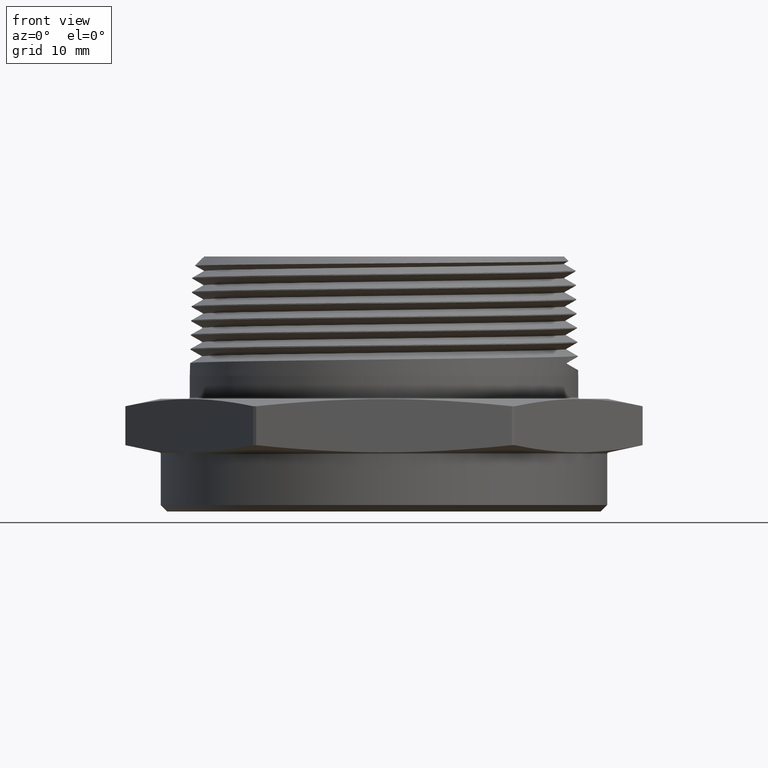
[diagram: clean part render]
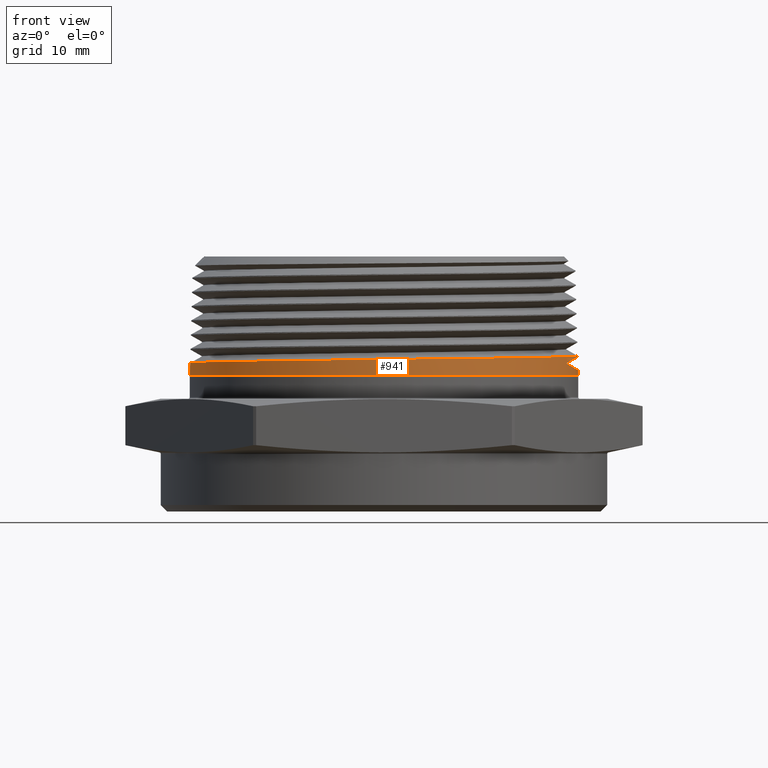
[diagram: same view with one face highlighted and labeled with its STEP entity id]
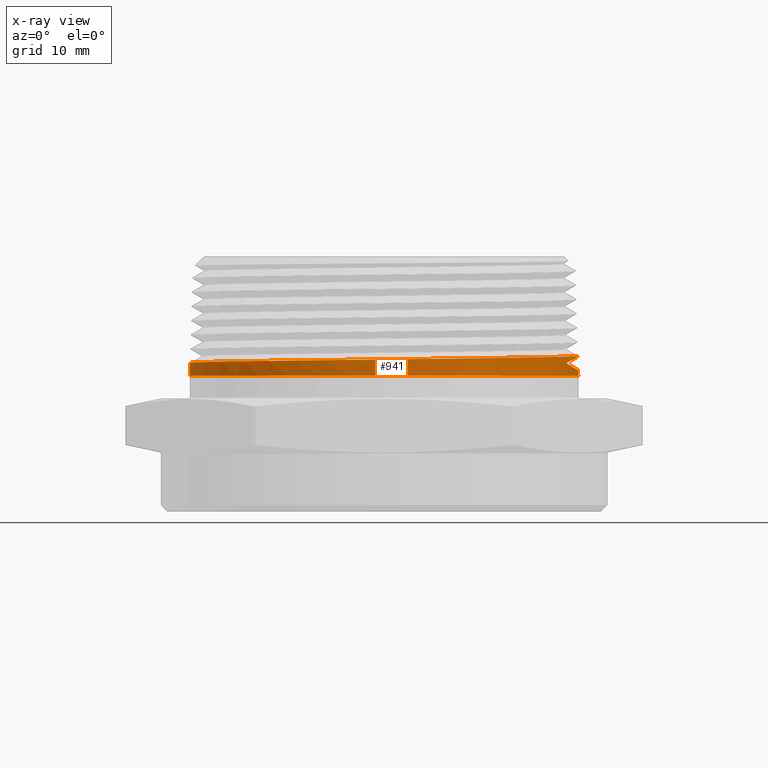
[diagram: x-ray of the same camera — body ghosted, the highlighted face saturated]
A machine part, front view. The second image highlights one B-rep face of the part: STEP entity #941.
The next image is the same camera in x-ray: the body ghosted, the highlighted face saturated — about 0% of this face is hidden behind the body in this view.
In plain terms, the highlighted conical surface has half-angle 1.47 deg.
Its self-contained STEP definition (entity closure, byte-faithful):
#231 = VERTEX_POINT ( 'NONE', #1107 ) ;
#233 = VERTEX_POINT ( 'NONE', #1109 ) ;
#259 = VERTEX_POINT ( 'NONE', #718 ) ;
#260 = VERTEX_POINT ( 'NONE', #719 ) ;
#261 = VERTEX_POINT ( 'NONE', #720 ) ;
#263 = VERTEX_POINT ( 'NONE', #722 ) ;
#269 = VERTEX_POINT ( 'NONE', #728 ) ;
#390 = FACE_OUTER_BOUND ( 'NONE', #7900, .T. ) ;
#395 = CONICAL_SURFACE ( 'NONE', #1925, 1.190625841662516200, 0.02565634000430881300 ) ;
#454 = LINE ( 'NONE', #2133, #460 ) ;
#460 = VECTOR ( 'NONE', #4053, 39.37007874015748100 ) ;
#461 = LINE ( 'NONE', #2153, #466 ) ;
#463 = LINE ( 'NONE', #2151, #464 ) ;
#464 = VECTOR ( 'NONE', #2152, 39.37007874015748100 ) ;
#466 = VECTOR ( 'NONE', #2155, 39.37007874015748100 ) ;
#489 = CIRCLE ( 'NONE', #1957, 1.187500000000000000 ) ;
#718 = CARTESIAN_POINT ( 'NONE',  ( 1.187500000000000000, 1.454268073987482100E-016, 0.4712952533779566900 ) ) ;
#719 = CARTESIAN_POINT ( 'NONE',  ( 1.186645000533695000, 2.325153602604478400E-015, 0.5046130164504506500 ) ) ;
#720 = CARTESIAN_POINT ( 'NONE',  ( -1.185529218039113300, 2.274924391407512300E-016, 0.5480930164504473900 ) ) ;
#722 = CARTESIAN_POINT ( 'NONE',  ( -1.187500000000000000, 0.0000000000000000000, 0.4712952533779566900 ) ) ;
#728 = CARTESIAN_POINT ( 'NONE',  ( 1.184413435544530200, 2.040348970267996500E-015, 0.5915730164504498000 ) ) ;
#941 = ADVANCED_FACE ( 'NONE', ( #390 ), #395, .T. ) ;
#1000 = EDGE_CURVE ( 'NONE', #269, #7905, #454, .T. ) ;
#1004 = EDGE_CURVE ( 'NONE', #260, #259, #463, .T. ) ;
#1005 = EDGE_CURVE ( 'NONE', #261, #263, #461, .T. ) ;
#1042 = EDGE_CURVE ( 'NONE', #269, #261, #6562, .T. ) ;
#1043 = EDGE_CURVE ( 'NONE', #263, #259, #489, .T. ) ;
#1044 = EDGE_CURVE ( 'NONE', #233, #260, #6563, .T. ) ;
#1045 = EDGE_CURVE ( 'NONE', #231, #233, #6564, .T. ) ;
#1046 = EDGE_CURVE ( 'NONE', #7905, #231, #6565, .T. ) ;
#1107 = CARTESIAN_POINT ( 'NONE',  ( 1.117552519913329600, -0.3956899596870014400, 0.5478522102968981200 ) ) ;
#1109 = CARTESIAN_POINT ( 'NONE',  ( 1.117552519913329600, -0.3959473495157783100, 0.5445035787355982900 ) ) ;
#1241 = CARTESIAN_POINT ( 'NONE',  ( 1.184436904304788400, -0.07826431744836553900, 0.5906584818516432700 ) ) ;
#1242 = CARTESIAN_POINT ( 'NONE',  ( 1.184413435544530200, 2.040348970267996500E-015, 0.5915730164504498000 ) ) ;
#1309 = CARTESIAN_POINT ( 'NONE',  ( 1.117552519913329600, -0.3957757808937815700, 0.5467360023395784200 ) ) ;
#1310 = CARTESIAN_POINT ( 'NONE',  ( 1.117552519913329600, -0.3956899596870014400, 0.5478522102968981200 ) ) ;
#1311 = CARTESIAN_POINT ( 'NONE',  ( 1.176771664654019800, -0.1554336755222475400, 0.5897567843123879800 ) ) ;
#1312 = CARTESIAN_POINT ( 'NONE',  ( 1.154092631342867700, -0.2694434336449708100, 0.5883984675665008300 ) ) ;
#1313 = CARTESIAN_POINT ( 'NONE',  ( 1.144655896674125600, -0.3071624617352892200, 0.5879420261245268400 ) ) ;
#1314 = CARTESIAN_POINT ( 'NONE',  ( 1.121920402800851100, -0.3820158051357524500, 0.5870280252899651200 ) ) ;
#1315 = CARTESIAN_POINT ( 'NONE',  ( 1.108765608685983400, -0.4186584654597881900, 0.5865764198009531000 ) ) ;
#1316 = CARTESIAN_POINT ( 'NONE',  ( 1.064269766022531300, -0.5258705701184571700, 0.5852199606311758700 ) ) ;
#1317 = CARTESIAN_POINT ( 'NONE',  ( 1.027884076363619200, -0.5939477157700442400, 0.5843226632063145400 ) ) ;
#1318 = CARTESIAN_POINT ( 'NONE',  ( 0.9630843520744799500, -0.6908966854790711300, 0.5829601845324110500 ) ) ;
#1319 = CARTESIAN_POINT ( 'NONE',  ( 0.9396581548580144000, -0.7224534166193743400, 0.5824988859501232200 ) ) ;
#1320 = CARTESIAN_POINT ( 'NONE',  ( 0.8903191891692672200, -0.7824853483935352300, 0.5815911444461114900 ) ) ;
#1321 = CARTESIAN_POINT ( 'NONE',  ( 0.8643194336825231700, -0.8111168930147065700, 0.5811425668971687000 ) ) ;
#1322 = CARTESIAN_POINT ( 'NONE',  ( 0.8097128745357342600, -0.8656665595801400500, 0.5802407380244604100 ) ) ;
#1323 = CARTESIAN_POINT ( 'NONE',  ( 0.7811059959672814700, -0.8915846067973858300, 0.5797876777411568000 ) ) ;
#1324 = CARTESIAN_POINT ( 'NONE',  ( 0.7212622398211184800, -0.9406835027632217700, 0.5788834255647181700 ) ) ;
#1325 = CARTESIAN_POINT ( 'NONE',  ( 0.6899457887154677400, -0.9639174311499743000, 0.5784311758143403400 ) ) ;
#1326 = CARTESIAN_POINT ( 'NONE',  ( 0.5924134191483538800, -1.029016588526543700, 0.5770611715282993900 ) ) ;
#1327 = CARTESIAN_POINT ( 'NONE',  ( 0.5241697741679698400, -1.065354874533903700, 0.5761625851159181100 ) ) ;
#1328 = CARTESIAN_POINT ( 'NONE',  ( 0.4171468460384280500, -1.109654732528556000, 0.5748094592047575700 ) ) ;
#1329 = CARTESIAN_POINT ( 'NONE',  ( 0.3806906412739711800, -1.122707631859508600, 0.5743550255990733700 ) ) ;
#1330 = CARTESIAN_POINT ( 'NONE',  ( 0.3248037116765822300, -1.139651266307445600, 0.5736729105628245500 ) ) ;
#1331 = CARTESIAN_POINT ( 'NONE',  ( 0.3059211661436035400, -1.144871539213508700, 0.5734446677233801000 ) ) ;
#1332 = CARTESIAN_POINT ( 'NONE',  ( 0.2680380051176398700, -1.154340453980393400, 0.5729899176916174500 ) ) ;
#1333 = CARTESIAN_POINT ( 'NONE',  ( 0.2490522020910070900, -1.158588864762038200, 0.5727635688977409400 ) ) ;
#1334 = CARTESIAN_POINT ( 'NONE',  ( 0.1539063822530170300, -1.177447200961365000, 0.5716304335949767800 ) ) ;
#1335 = CARTESIAN_POINT ( 'NONE',  ( 0.07710192475132506000, -1.184973473918633900, 0.5707335911635746900 ) ) ;
#1336 = CARTESIAN_POINT ( 'NONE',  ( -0.01975949353368015500, -1.184970856004429400, 0.5696022195038197300 ) ) ;
#1337 = CARTESIAN_POINT ( 'NONE',  ( -0.03917494250642266500, -1.184495602943350700, 0.5693746123928565800 ) ) ;
#1338 = CARTESIAN_POINT ( 'NONE',  ( -0.07809367992320617700, -1.182579235049751700, 0.5689181625976194000 ) ) ;
#1339 = CARTESIAN_POINT ( 'NONE',  ( -0.09764811409106267900, -1.181131644186110600, 0.5686887227160925000 ) ) ;
#1340 = CARTESIAN_POINT ( 'NONE',  ( -0.1558810119749945400, -1.175368545169660100, 0.5680053221006717800 ) ) ;
#1341 = CARTESIAN_POINT ( 'NONE',  ( -0.1942286487246051000, -1.169642377170521300, 0.5675557468259282400 ) ) ;
#1342 = CARTESIAN_POINT ( 'NONE',  ( -0.3078895741031024100, -1.146975127150197300, 0.5662019879866128100 ) ) ;
#1343 = CARTESIAN_POINT ( 'NONE',  ( -0.3818341387260548700, -1.124597416965668700, 0.5653042582663462300 ) ) ;
#1344 = CARTESIAN_POINT ( 'NONE',  ( -0.4719121120287960200, -1.087281457054009500, 0.5641655427697013200 ) ) ;
#1345 = CARTESIAN_POINT ( 'NONE',  ( -0.4898380735925023700, -1.079330429471030900, 0.5639357448336045400 ) ) ;
#1346 = CARTESIAN_POINT ( 'NONE',  ( -0.5250657263213064400, -1.062651996271043700, 0.5634792285993411900 ) ) ;
#1347 = CARTESIAN_POINT ( 'NONE',  ( -0.5424120055701626700, -1.053907941106708300, 0.5632519548737205900 ) ) ;
#1348 = CARTESIAN_POINT ( 'NONE',  ( -0.5936620280978972500, -1.026482177519656200, 0.5625731951975933000 ) ) ;
#1349 = CARTESIAN_POINT ( 'NONE',  ( -0.6267788105184745100, -1.006609663308307700, 0.5621254038063903100 ) ) ;
#1350 = CARTESIAN_POINT ( 'NONE',  ( -0.6909394509107152900, -0.9637282746562130200, 0.5612241661215885400 ) ) ;
#1351 = CARTESIAN_POINT ( 'NONE',  ( -0.7219833257536044700, -0.9407194236908519300, 0.5607708162469883200 ) ) ;
#1352 = CARTESIAN_POINT ( 'NONE',  ( -0.7669695272505545600, -0.9038160727221433700, 0.5600913676398470200 ) ) ;
#1353 = CARTESIAN_POINT ( 'NONE',  ( -0.7817011925934501700, -0.8911159072846272000, 0.5598648188039342400 ) ) ;
#1354 = CARTESIAN_POINT ( 'NONE',  ( -0.8106269640511605300, -0.8649022409037434600, 0.5594103379016043300 ) ) ;
#1355 = CARTESIAN_POINT ( 'NONE',  ( -0.8248183555316425100, -0.8513863292125559700, 0.5591824048771943900 ) ) ;
#1356 = CARTESIAN_POINT ( 'NONE',  ( -0.8936412855449366000, -0.7825250774067914500, 0.5580454621109439700 ) ) ;
#1357 = CARTESIAN_POINT ( 'NONE',  ( -0.9425880956109385900, -0.7227953231443504700, 0.5571481908769954100 ) ) ;
#1358 = CARTESIAN_POINT ( 'NONE',  ( -1.007043328477501100, -0.6263935771521180800, 0.5557941577256878500 ) ) ;
#1359 = CARTESIAN_POINT ( 'NONE',  ( -1.027023630729037200, -0.5931171240810757500, 0.5553388163583743400 ) ) ;
#1360 = CARTESIAN_POINT ( 'NONE',  ( -1.054662617911426700, -0.5414321495294357500, 0.5546544869149209200 ) ) ;
#1361 = CARTESIAN_POINT ( 'NONE',  ( -1.063460835725986300, -0.5239501452102162100, 0.5544265637524477000 ) ) ;
#1362 = CARTESIAN_POINT ( 'NONE',  ( -1.080093266743090900, -0.4887727452581031000, 0.5539735970703137900 ) ) ;
#1363 = CARTESIAN_POINT ( 'NONE',  ( -1.087950066177113300, -0.4710358169560422400, 0.5537479985039506200 ) ) ;
#1364 = CARTESIAN_POINT ( 'NONE',  ( -1.124972510443685600, -0.3816215748999337600, 0.5526180057561997900 ) ) ;
#1365 = CARTESIAN_POINT ( 'NONE',  ( -1.147417783802077400, -0.3077760317515762500, 0.5517212594924884000 ) ) ;
#1366 = CARTESIAN_POINT ( 'NONE',  ( -1.170216849645622200, -0.1935013841660124000, 0.5503608815617560000 ) ) ;
#1367 = CARTESIAN_POINT ( 'NONE',  ( -1.175997797514079000, -0.1546302611217388000, 0.5498999141274179000 ) ) ;
#1368 = CARTESIAN_POINT ( 'NONE',  ( -1.183625836761064800, -0.07724281038237358600, 0.5489920914323729300 ) ) ;
#1369 = CARTESIAN_POINT ( 'NONE',  ( -1.185517654841096400, -0.03859762246955621800, 0.5485436130964871400 ) ) ;
#1370 = CARTESIAN_POINT ( 'NONE',  ( -1.185529218039113300, 2.274924391407512300E-016, 0.5480930164504473900 ) ) ;
#1371 = CARTESIAN_POINT ( 'NONE',  ( 1.117552519913329600, -0.3959473495157783100, 0.5445035787355982900 ) ) ;
#1372 = CARTESIAN_POINT ( 'NONE',  ( 1.163383376826498900, -0.2686240571228477600, 0.5180431211595883900 ) ) ;
#1373 = CARTESIAN_POINT ( 'NONE',  ( 0.0000000000000000000, 0.0000000000000000000, 0.4712952533779566900 ) ) ;
#1374 = DIRECTION ( 'NONE',  ( 0.0000000000000000000, 0.0000000000000000000, 1.000000000000000000 ) ) ;
#1375 = DIRECTION ( 'NONE',  ( -1.000000000000000000, 0.0000000000000000000, 0.0000000000000000000 ) ) ;
#1376 = CARTESIAN_POINT ( 'NONE',  ( 1.184542872171103500, 2.266818671848740400E-015, 0.5865291082060323200 ) ) ;
#1377 = CARTESIAN_POINT ( 'NONE',  ( 1.186645000533695000, -0.1353189829729564400, 0.5046130164504506500 ) ) ;
#1378 = CARTESIAN_POINT ( 'NONE',  ( 1.186645000533695000, 2.325153602604478400E-015, 0.5046130164504506500 ) ) ;
#1379 = CARTESIAN_POINT ( 'NONE',  ( 1.184542872171103800, -0.1350359330577043900, 0.5865291082060322100 ) ) ;
#1381 = CARTESIAN_POINT ( 'NONE',  ( 1.117552519913329600, -0.3958615774875189900, 0.5456197918174927600 ) ) ;
#1382 = CARTESIAN_POINT ( 'NONE',  ( 1.117552519913329600, -0.3959473495157783100, 0.5445035787355982900 ) ) ;
#1385 = CARTESIAN_POINT ( 'NONE',  ( 1.162001961947025900, -0.2681776699984279000, 0.5735151076203813800 ) ) ;
#1386 = CARTESIAN_POINT ( 'NONE',  ( 1.117552519913329600, -0.3956899596870014400, 0.5478522102968981200 ) ) ;
#1925 = AXIS2_PLACEMENT_3D ( 'NONE', #7541, #7542, #7540 ) ;
#1957 = AXIS2_PLACEMENT_3D ( 'NONE', #1373, #1374, #1375 ) ;
#2133 = CARTESIAN_POINT ( 'NONE',  ( 1.190625841662516200, 1.458096125974123800E-016, 0.3494869294921574300 ) ) ;
#2151 = CARTESIAN_POINT ( 'NONE',  ( 1.190625841662516200, 1.458096125974123800E-016, 0.3494869294921574300 ) ) ;
#2152 = DIRECTION ( 'NONE',  ( 0.02565352539212722600, 3.141650775831395700E-018, -0.9996708941621514900 ) ) ;
#2153 = CARTESIAN_POINT ( 'NONE',  ( -1.190625841662516200, 0.0000000000000000000, 0.3494869294921574300 ) ) ;
#2155 = DIRECTION ( 'NONE',  ( -0.02565352539212722600, 0.0000000000000000000, -0.9996708941621514900 ) ) ;
#4053 = DIRECTION ( 'NONE',  ( 0.02565352539212722600, 3.141650775831395700E-018, -0.9996708941621514900 ) ) ;
#6465 = CARTESIAN_POINT ( 'NONE',  ( 1.184542872171103500, 2.266818671848740400E-015, 0.5865291082060323200 ) ) ;
#6562 = B_SPLINE_CURVE_WITH_KNOTS ( 'NONE', 3,
 ( #1242, #1241, #1311, #1312, #1313, #1314, #1315, #1316, #1317, #1318, #1319, #1320, #1321, #1322, #1323, #1324, #1325, #1326, #1327, #1328, #1329, #1330, #1331, #1332, #1333, #1334, #1335, #1336, #1337, #1338, #1339, #1340, #1341, #1342, #1343, #1344, #1345, #1346, #1347, #1348, #1349, #1350, #1351, #1352, #1353, #1354, #1355, #1356, #1357, #1358, #1359, #1360, #1361, #1362, #1363, #1364, #1365, #1366, #1367, #1368, #1369, #1370 ),
 .UNSPECIFIED., .F., .F.,
 ( 4, 2, 2, 2, 2, 2, 2, 2, 2, 2, 2, 2, 2, 2, 2, 2, 2, 2, 2, 2, 2, 2, 2, 2, 2, 2, 2, 2, 2, 2, 4 ),
 ( 1.169926016956233300, 1.175877955643968200, 1.178853924987835600, 1.181829894331703200, 1.187781833019437800, 1.190757802363305400, 1.193733771707172800, 1.196709741051040300, 1.199685710394907700, 1.205637649082642600, 1.208613618426509900, 1.210101603098443700, 1.211589587770377300, 1.217541526458112200, 1.219029511130046000, 1.220517495801979800, 1.223493465145847100, 1.229445403833582000, 1.230933388505515600, 1.232421373177449400, 1.235397342521316700, 1.238373311865184300, 1.239861296537117900, 1.241349281209051600, 1.247301219896786600, 1.250277189240653900, 1.251765173912587700, 1.253253158584521500, 1.259205097272256200, 1.262181066616123700, 1.265157035959991100 ),
 .UNSPECIFIED. ) ;
#6563 =( BOUNDED_CURVE ( )  B_SPLINE_CURVE ( 3, ( #1371, #1372, #1377, #1378 ),
 .UNSPECIFIED., .F., .T. ) 
 B_SPLINE_CURVE_WITH_KNOTS ( ( 4, 4 ),
 ( 5.937703143357008900, 6.283185307179586200 ),
 .UNSPECIFIED. ) 
 CURVE ( )  GEOMETRIC_REPRESENTATION_ITEM ( )  RATIONAL_B_SPLINE_CURVE ( ( 1.000000000000000000, 0.9900782148036582100, 0.9900782148036582100, 1.000000000000000000 ) ) 
 REPRESENTATION_ITEM ( '' )  );
#6564 = B_SPLINE_CURVE_WITH_KNOTS ( 'NONE', 3,
 ( #1310, #1309, #1381, #1382 ),
 .UNSPECIFIED., .F., .F.,
 ( 4, 4 ),
 ( 0.05418363149093021600, 0.05426890626145886700 ),
 .UNSPECIFIED. ) ;
#6565 =( BOUNDED_CURVE ( )  B_SPLINE_CURVE ( 3, ( #1376, #1379, #1385, #1386 ),
 .UNSPECIFIED., .F., .T. ) 
 B_SPLINE_CURVE_WITH_KNOTS ( ( 4, 4 ),
 ( 3.141592653589793100, 3.476976211009786600 ),
 .UNSPECIFIED. ) 
 CURVE ( )  GEOMETRIC_REPRESENTATION_ITEM ( )  RATIONAL_B_SPLINE_CURVE ( ( 1.000000000000000000, 0.9906484342150427800, 0.9906484342150427800, 1.000000000000000000 ) ) 
 REPRESENTATION_ITEM ( '' )  );
#7540 = DIRECTION ( 'NONE',  ( -1.000000000000000000, 0.0000000000000000000, 0.0000000000000000000 ) ) ;
#7541 = CARTESIAN_POINT ( 'NONE',  ( 0.0000000000000000000, 0.0000000000000000000, 0.3494869294921574300 ) ) ;
#7542 = DIRECTION ( 'NONE',  ( -0.0000000000000000000, -0.0000000000000000000, -1.000000000000000000 ) ) ;
#7590 = ORIENTED_EDGE ( 'NONE', *, *, #1000, .F. ) ;
#7596 = ORIENTED_EDGE ( 'NONE', *, *, #1004, .F. ) ;
#7597 = ORIENTED_EDGE ( 'NONE', *, *, #1005, .T. ) ;
#7601 = ORIENTED_EDGE ( 'NONE', *, *, #1045, .F. ) ;
#7618 = ORIENTED_EDGE ( 'NONE', *, *, #1044, .F. ) ;
#7619 = ORIENTED_EDGE ( 'NONE', *, *, #1043, .T. ) ;
#7620 = ORIENTED_EDGE ( 'NONE', *, *, #1042, .T. ) ;
#7622 = ORIENTED_EDGE ( 'NONE', *, *, #1046, .F. ) ;
#7900 = EDGE_LOOP ( 'NONE', ( #7590, #7620, #7597, #7619, #7596, #7618, #7601, #7622 ) ) ;
#7905 = VERTEX_POINT ( 'NONE', #6465 ) ;